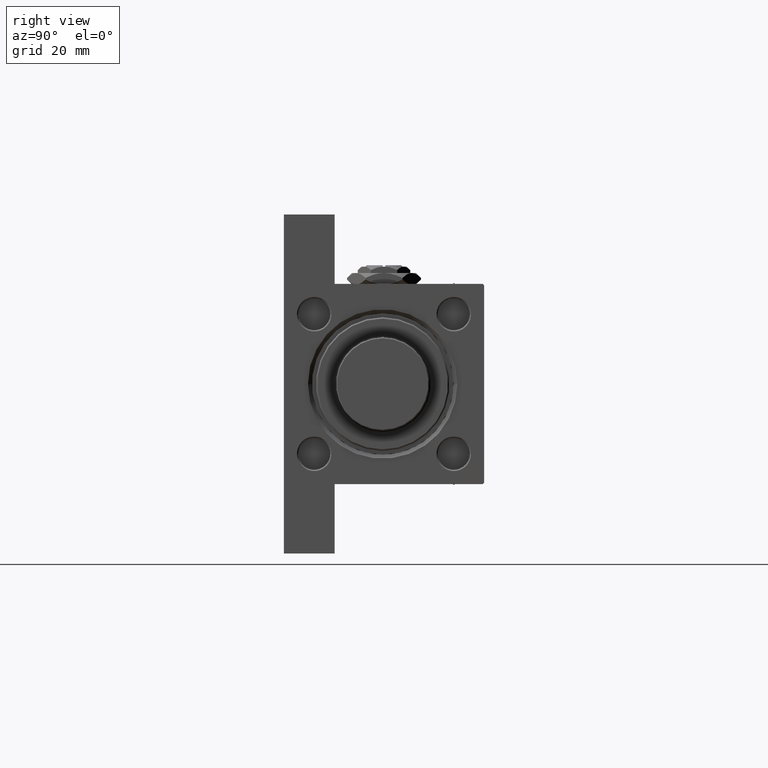
[diagram: clean part render]
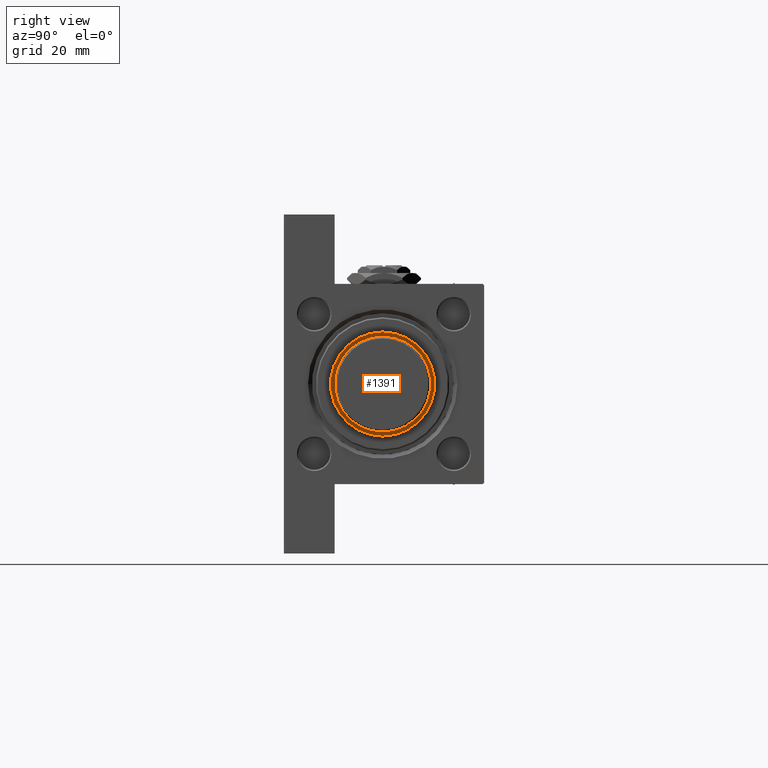
[diagram: same view with one face highlighted and labeled with its STEP entity id]
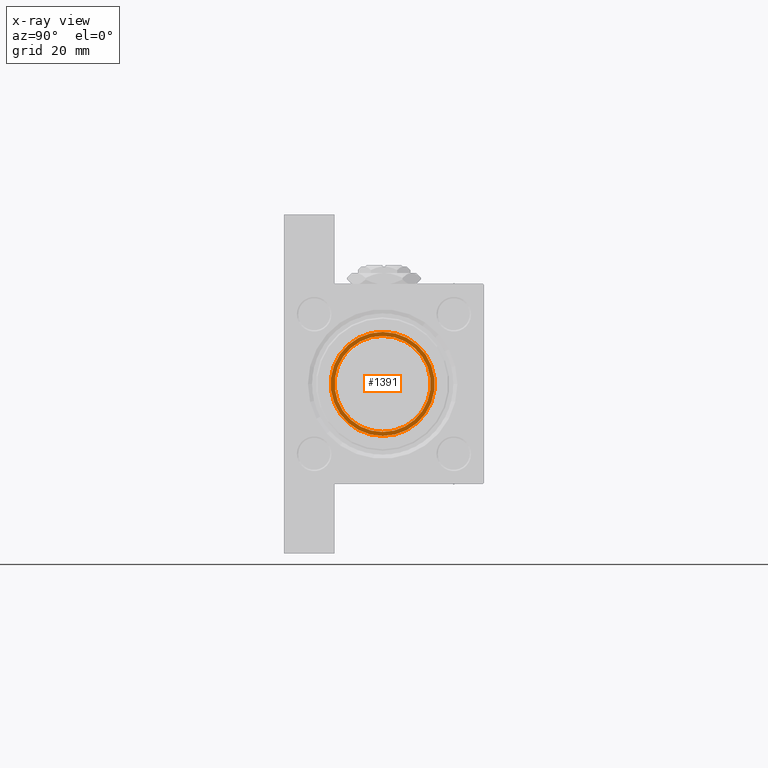
[diagram: x-ray of the same camera — body ghosted, the highlighted face saturated]
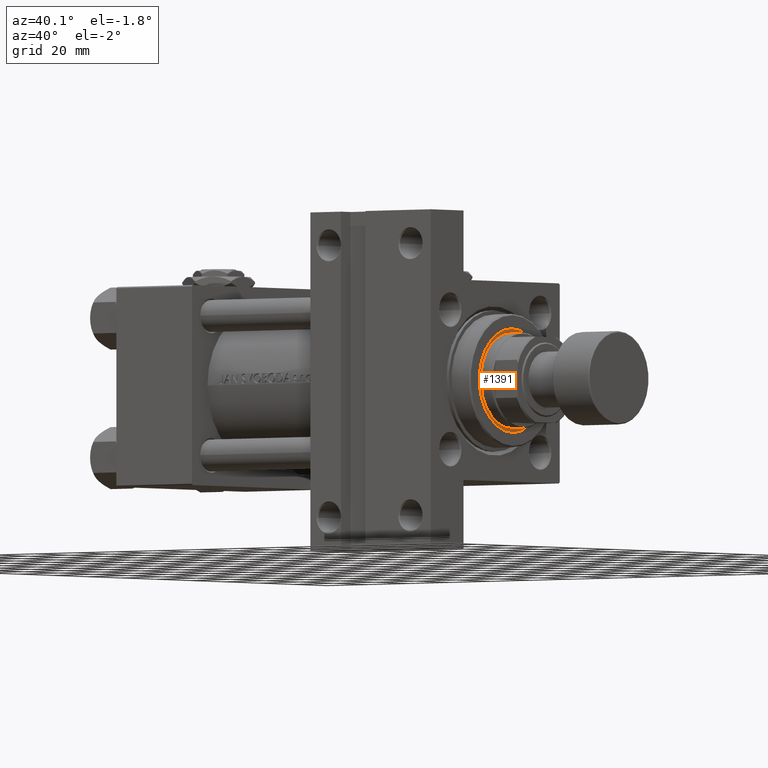
[diagram: same view with one face highlighted and labeled with its STEP entity id]
A machine part, right view. The second image highlights one B-rep face of the part: STEP entity #1391.
The next image is the same camera in x-ray: the body ghosted, the highlighted face saturated — about 0% of this face is hidden behind the body in this view.
A second angle (auxiliary view) of the same face is appended — the face is thin or edge-on in the first view.
In plain terms, the highlighted planar face has unit normal (1, 0, 0).
Its self-contained STEP definition (entity closure, byte-faithful):
#1391 = ADVANCED_FACE ( 'NONE', ( #21862, #6415 ), #36852, .T. ) ;
#1659 = VERTEX_POINT ( 'NONE', #20796 ) ;
#1862 = DIRECTION ( 'NONE',  ( 1.000000000000000000, 0.000000000000000000, -0.000000000000000000 ) ) ;
#2823 = DIRECTION ( 'NONE',  ( -0.000000000000000000, -0.000000000000000000, -1.000000000000000000 ) ) ;
#3343 = VERTEX_POINT ( 'NONE', #34875 ) ;
#6415 = FACE_BOUND ( 'NONE', #40265, .T. ) ;
#8057 = DIRECTION ( 'NONE',  ( 1.000000000000000000, 0.000000000000000000, 0.000000000000000000 ) ) ;
#9028 = VERTEX_POINT ( 'NONE', #42231 ) ;
#11847 = CARTESIAN_POINT ( 'NONE',  ( 0.000000000000000000, 0.000000000000000000, 37.19999999999999574 ) ) ;
#12364 = DIRECTION ( 'NONE',  ( 1.000000000000000000, 0.000000000000000000, 0.000000000000000000 ) ) ;
#13718 = DIRECTION ( 'NONE',  ( 1.000000000000000000, 0.000000000000000000, 0.000000000000000000 ) ) ;
#13735 = EDGE_CURVE ( 'NONE', #9028, #3343, #45800, .T. ) ;
#13750 = CARTESIAN_POINT ( 'NONE',  ( 0.000000000000000000, 0.000000000000000000, 37.19999999999999574 ) ) ;
#13861 = ORIENTED_EDGE ( 'NONE', *, *, #13735, .T. ) ;
#15644 = CARTESIAN_POINT ( 'NONE',  ( -19.50000000000000000, 2.388061258337338939E-15, 37.19999999999999574 ) ) ;
#18904 = ORIENTED_EDGE ( 'NONE', *, *, #27976, .T. ) ;
#19030 = AXIS2_PLACEMENT_3D ( 'NONE', #11847, #42783, #8057 ) ;
#20796 = CARTESIAN_POINT ( 'NONE',  ( 19.50000000000000000, 0.000000000000000000, 37.19999999999999574 ) ) ;
#21862 = FACE_OUTER_BOUND ( 'NONE', #33495, .T. ) ;
#22028 = EDGE_CURVE ( 'NONE', #3343, #9028, #26120, .T. ) ;
#24181 = CIRCLE ( 'NONE', #50123, 19.50000000000000000 ) ;
#25542 = CARTESIAN_POINT ( 'NONE',  ( 0.000000000000000000, 0.000000000000000000, 37.19999999999999574 ) ) ;
#26120 = CIRCLE ( 'NONE', #32622, 18.00000000000000000 ) ;
#26151 = VERTEX_POINT ( 'NONE', #15644 ) ;
#26842 = AXIS2_PLACEMENT_3D ( 'NONE', #13750, #44197, #1862 ) ;
#27976 = EDGE_CURVE ( 'NONE', #1659, #26151, #30401, .T. ) ;
#28785 = AXIS2_PLACEMENT_3D ( 'NONE', #43307, #28857, #12364 ) ;
#28857 = DIRECTION ( 'NONE',  ( 0.000000000000000000, 0.000000000000000000, 1.000000000000000000 ) ) ;
#30401 = CIRCLE ( 'NONE', #28785, 19.50000000000000000 ) ;
#31977 = ORIENTED_EDGE ( 'NONE', *, *, #39639, .T. ) ;
#32622 = AXIS2_PLACEMENT_3D ( 'NONE', #37562, #2823, #13718 ) ;
#32681 = DIRECTION ( 'NONE',  ( 0.000000000000000000, 0.000000000000000000, 1.000000000000000000 ) ) ;
#33495 = EDGE_LOOP ( 'NONE', ( #18904, #31977 ) ) ;
#34875 = CARTESIAN_POINT ( 'NONE',  ( 18.00000000000000000, 0.000000000000000000, 37.19999999999999574 ) ) ;
#36852 = PLANE ( 'NONE',  #26842 ) ;
#37562 = CARTESIAN_POINT ( 'NONE',  ( 0.000000000000000000, 0.000000000000000000, 37.19999999999999574 ) ) ;
#39639 = EDGE_CURVE ( 'NONE', #26151, #1659, #24181, .T. ) ;
#40265 = EDGE_LOOP ( 'NONE', ( #42588, #13861 ) ) ;
#42231 = CARTESIAN_POINT ( 'NONE',  ( -18.00000000000000000, 2.204364238465235428E-15, 37.19999999999999574 ) ) ;
#42588 = ORIENTED_EDGE ( 'NONE', *, *, #22028, .T. ) ;
#42783 = DIRECTION ( 'NONE',  ( -0.000000000000000000, -0.000000000000000000, -1.000000000000000000 ) ) ;
#43307 = CARTESIAN_POINT ( 'NONE',  ( 0.000000000000000000, 0.000000000000000000, 37.19999999999999574 ) ) ;
#44197 = DIRECTION ( 'NONE',  ( 0.000000000000000000, 0.000000000000000000, 1.000000000000000000 ) ) ;
#45800 = CIRCLE ( 'NONE', #19030, 18.00000000000000000 ) ;
#48881 = DIRECTION ( 'NONE',  ( 1.000000000000000000, 0.000000000000000000, 0.000000000000000000 ) ) ;
#50123 = AXIS2_PLACEMENT_3D ( 'NONE', #25542, #32681, #48881 ) ;